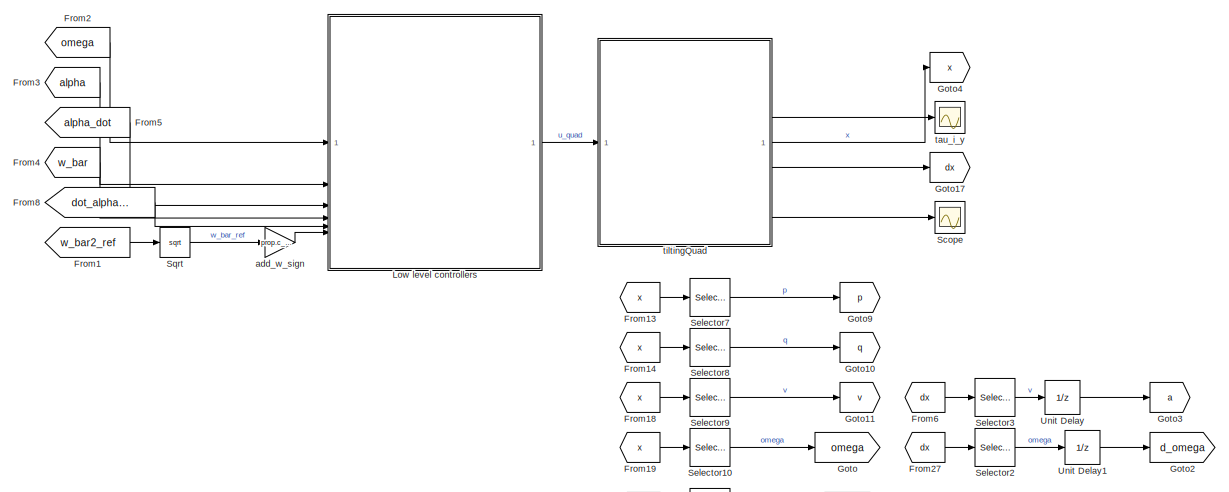
[diagram: root canvas - part 1/4, top right region]
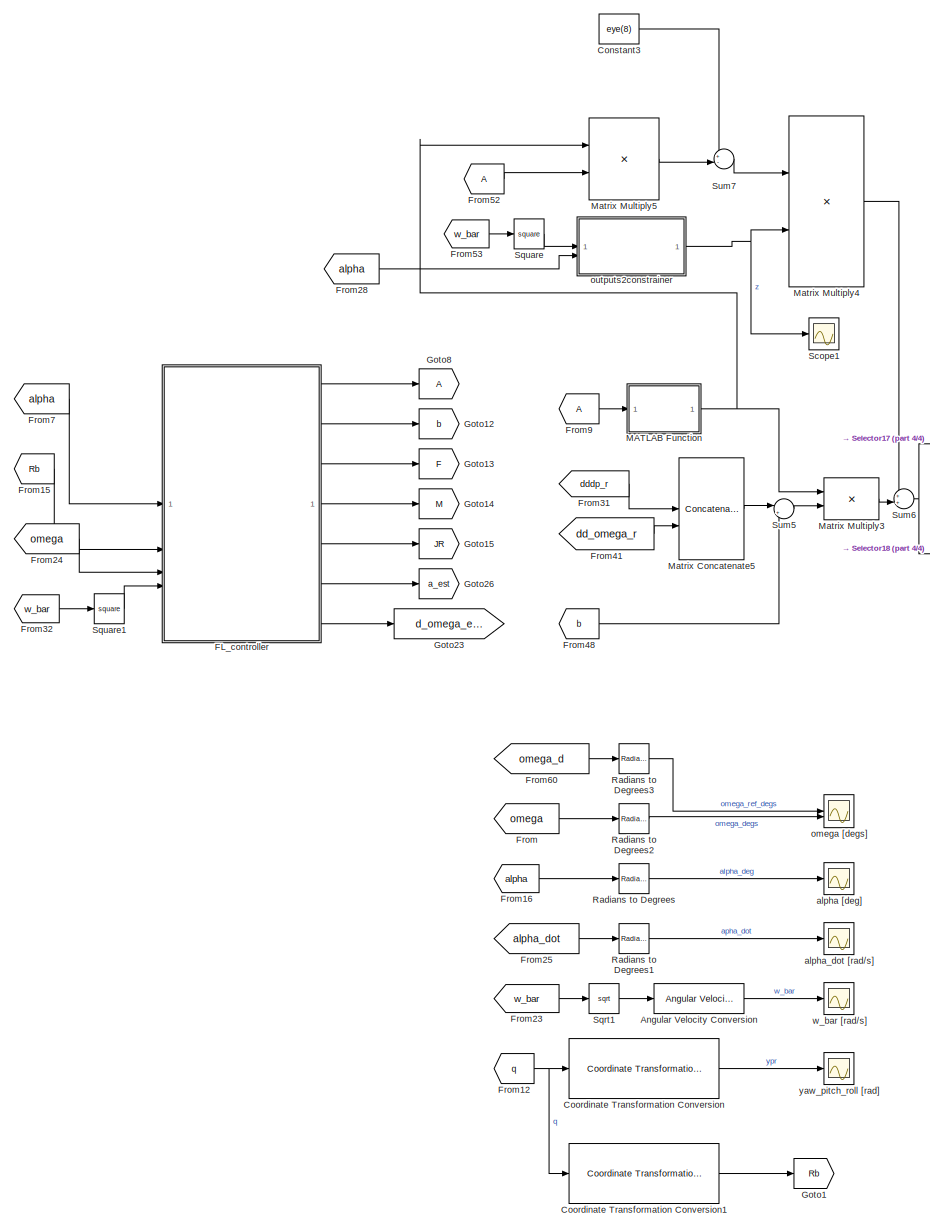
[diagram: root canvas - part 2/4, center side, full height]
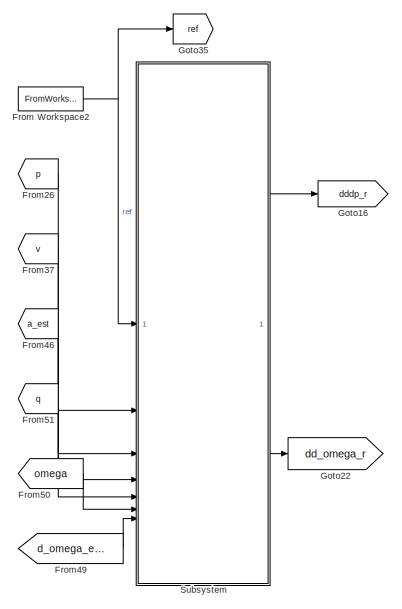
[diagram: root canvas - part 3/4, middle left region]
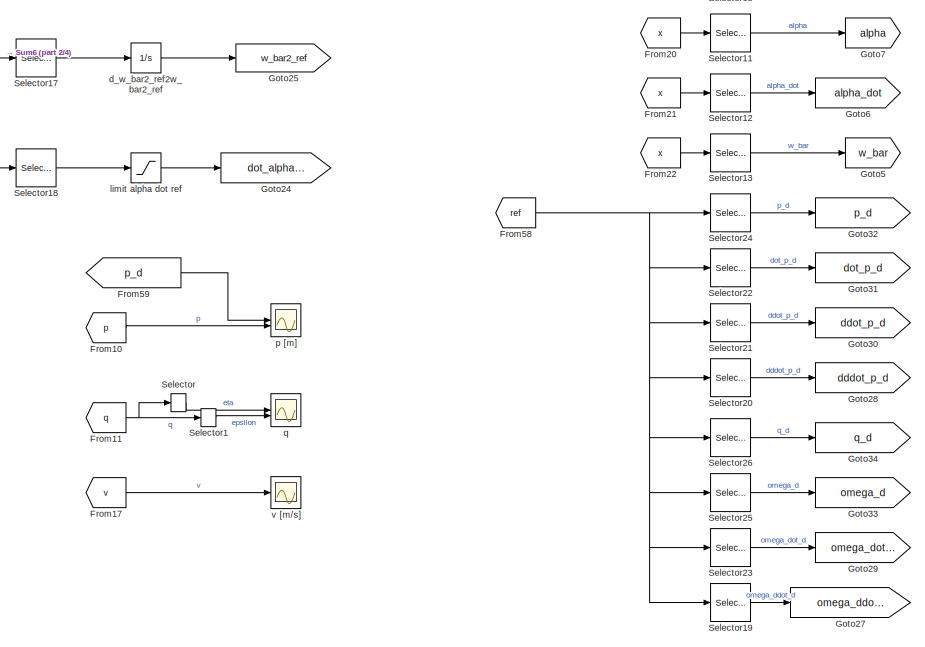
[diagram: root canvas - part 4/4, middle right region]
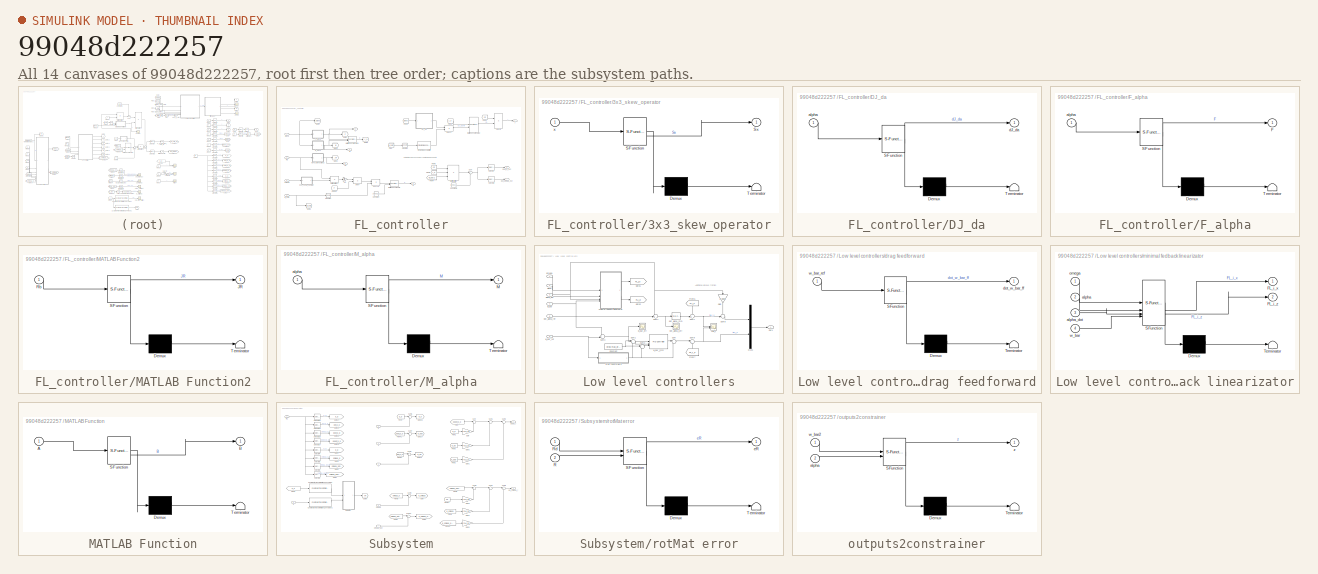
[diagram: thumbnail index - all 14 canvases of the model, root first then tree order]
MODEL slx_99048d222257
KIND model
CONFIG AbsTol = auto
CONFIG EnableMultiTasking = off
CONFIG FixedStep = T_s
CONFIG InitFcn = run initFLhighFidelityTiltingQuadrotor
CONFIG MaxStep = auto
CONFIG MinStep = auto
CONFIG RelTol = 1e-3
CONFIG SampleTimeConstraint = Unconstrained
CONFIG SolverName = ode4
CONFIG StartTime = 0.0
CONFIG StopTime = 15
BLOCK [Reference] Angular Velocity Conversion  REF=aerolibconvert2/Angular Velocity
Conversion
  Commented = through
  SourceBlock = aerolibconvert2/Angular Velocity\nConversion
  SourceType = Angular Velocity Conversion
BLOCK [Constant] Constant3
  Value = eye(8)
BLOCK [Reference] Coordinate Transformation Conversion  REF=robotcorelib/Coordinate Transformation Conversion
  LibrarySourceBlock = robotutilslib/Coordinate Transformation Conversion
  SourceBlock = robotcorelib/Coordinate Transformation Conversion
  SourceType = robotics.slcore.internal.block.CoordinateTransformationConversion
BLOCK [Reference] Coordinate Transformation Conversion1  REF=robotcorelib/Coordinate Transformation Conversion
  LibrarySourceBlock = robotutilslib/Coordinate Transformation Conversion
  SourceBlock = robotcorelib/Coordinate Transformation Conversion
  SourceType = robotics.slcore.internal.block.CoordinateTransformationConversion
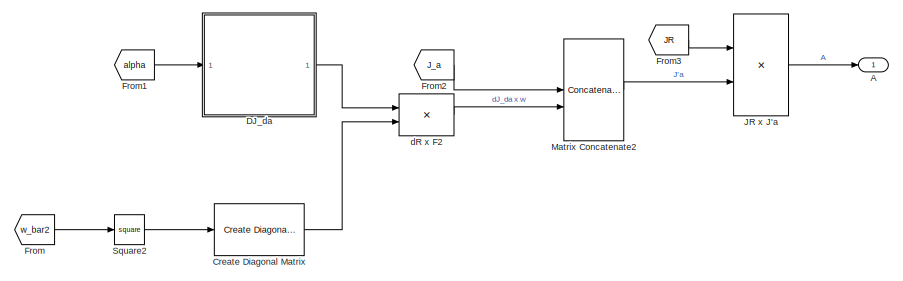
[diagram: FL_controller - part 1/2, top right region]
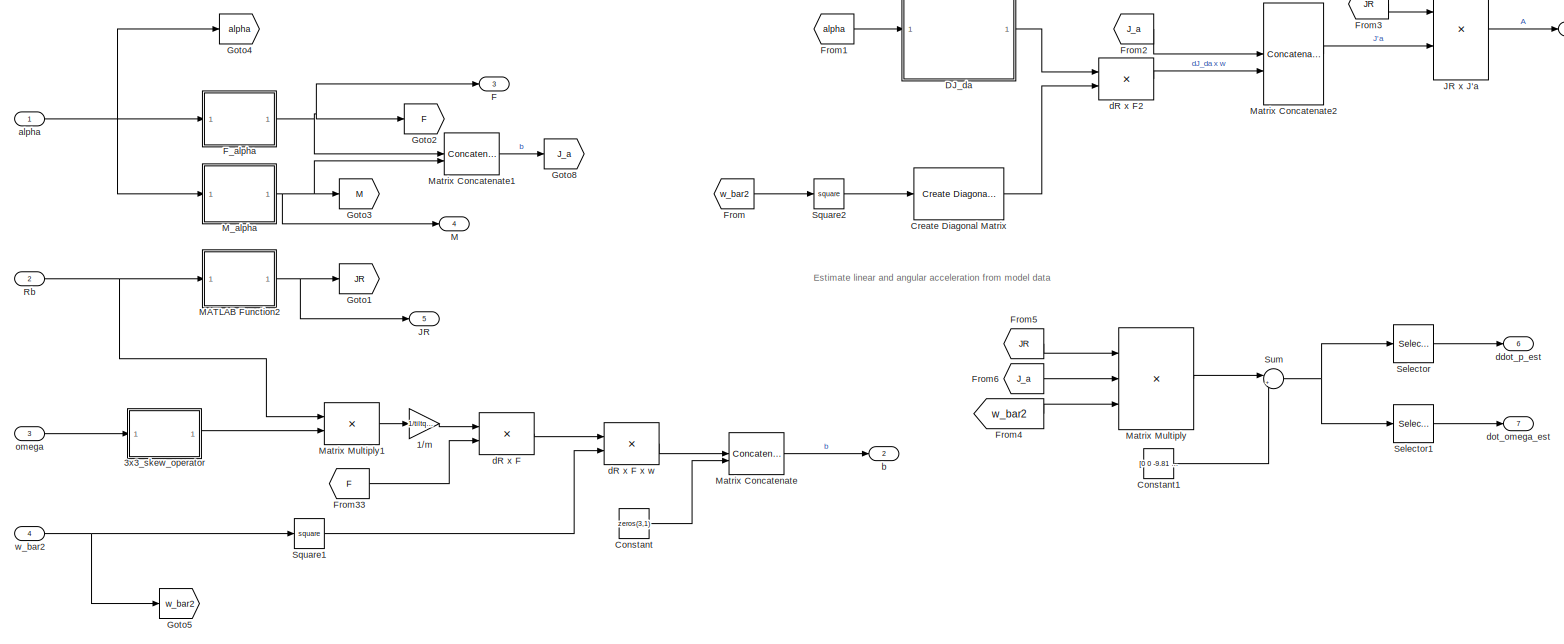
[diagram: FL_controller - part 2/2, most of the canvas]
BLOCK [SubSystem] FL_controller
BLOCK [Gain] FL_controller/1//m
  Gain = 1/tiltq.m_b
BLOCK [SubSystem] FL_controller/3x3_skew_operator
  ErrorFcn = Stateflow.Translate.translate
  LibrarySourceBlock = simulink/User-Defined\nFunctions/MATLAB Function
  PermitHierarchicalResolution = ExplicitOnly
  SFBlockType = MATLAB Function
  TreatAsAtomicUnit = on
BLOCK [Demux] FL_controller/3x3_skew_operator/ Demux 
  Outputs = 1
BLOCK [S-Function] FL_controller/3x3_skew_operator/ SFunction 
  EnableBusSupport = on
  FunctionName = sf_sfun
  PortCounts = [1 2]
  SFcnIsStateOwnerBlock = off
  SFunctionDeploymentMode = off
  Tag = Stateflow S-Function 8
BLOCK [Terminator] FL_controller/3x3_skew_operator/ Terminator 
BLOCK [Outport] FL_controller/3x3_skew_operator/Sx
BLOCK [Inport] FL_controller/3x3_skew_operator/x
BLOCK [Outport] FL_controller/A
  PortDimensions = [6 8]
BLOCK [Constant] FL_controller/Constant
  Value = zeros(3,1)
BLOCK [Constant] FL_controller/Constant1
  Value = [0 0 -9.81 0 0 0]
BLOCK [Reference] FL_controller/Create Diagonal Matrix  REF=matrix_library/Create Diagonal
Matrix
  LibrarySourceBlock = simulink/Matrix\nOperations/Create Diagonal\nMatrix
  SourceBlock = matrix_library/Create Diagonal\nMatrix
  SourceType = Create Diagonal Matrix
BLOCK [SubSystem] FL_controller/DJ_da
  ErrorFcn = Stateflow.Translate.translate
  LibrarySourceBlock = simulink/User-Defined\nFunctions/MATLAB Function
  PermitHierarchicalResolution = ExplicitOnly
  SFBlockType = MATLAB Function
  TreatAsAtomicUnit = on
BLOCK [Demux] FL_controller/DJ_da/ Demux 
  Outputs = 1
BLOCK [S-Function] FL_controller/DJ_da/ SFunction 
  EnableBusSupport = on
  FunctionName = sf_sfun
  Parameters = beta,c_d,c_t,c_tau,p_mot
  PortCounts = [1 2]
  SFcnIsStateOwnerBlock = off
  SFunctionDeploymentMode = off
  Tag = Stateflow S-Function 9
BLOCK [Terminator] FL_controller/DJ_da/ Terminator 
BLOCK [Inport] FL_controller/DJ_da/alpha
BLOCK [Outport] FL_controller/DJ_da/dJ_da
BLOCK [Outport] FL_controller/F
  Port = 3
BLOCK [SubSystem] FL_controller/F_alpha
  ErrorFcn = Stateflow.Translate.translate
  LibrarySourceBlock = simulink/User-Defined\nFunctions/MATLAB Function
  PermitHierarchicalResolution = ExplicitOnly
  SFBlockType = MATLAB Function
  TreatAsAtomicUnit = on
BLOCK [Demux] FL_controller/F_alpha/ Demux 
  Outputs = 1
BLOCK [S-Function] FL_controller/F_alpha/ SFunction 
  EnableBusSupport = on
  FunctionName = sf_sfun
  Parameters = beta,c_t
  PortCounts = [1 2]
  SFcnIsStateOwnerBlock = off
  SFunctionDeploymentMode = off
  Tag = Stateflow S-Function 5
BLOCK [Terminator] FL_controller/F_alpha/ Terminator 
BLOCK [Outport] FL_controller/F_alpha/F
BLOCK [Inport] FL_controller/F_alpha/alpha
BLOCK [From] FL_controller/From
  GotoTag = w_bar2
BLOCK [From] FL_controller/From1
  GotoTag = alpha
BLOCK [From] FL_controller/From2
  GotoTag = J_a
BLOCK [From] FL_controller/From3
  GotoTag = JR
BLOCK [From] FL_controller/From33
  GotoTag = F
BLOCK [From] FL_controller/From4
  GotoTag = w_bar2
BLOCK [From] FL_controller/From5
  GotoTag = JR
BLOCK [From] FL_controller/From6
  GotoTag = J_a
BLOCK [Goto] FL_controller/Goto1
  GotoTag = JR
BLOCK [Goto] FL_controller/Goto2
  GotoTag = F
BLOCK [Goto] FL_controller/Goto3
  Commented = on
  GotoTag = M
BLOCK [Goto] FL_controller/Goto4
  GotoTag = alpha
BLOCK [Goto] FL_controller/Goto5
  GotoTag = w_bar2
BLOCK [Goto] FL_controller/Goto8
  GotoTag = J_a
BLOCK [Outport] FL_controller/JR
  Port = 5
BLOCK [Product] FL_controller/JR x J'a
  Multiplication = Matrix(*)
BLOCK [Outport] FL_controller/M
  Port = 4
BLOCK [SubSystem] FL_controller/MATLAB Function2
  ErrorFcn = Stateflow.Translate.translate
  LibrarySourceBlock = simulink/User-Defined\nFunctions/MATLAB Function
  PermitHierarchicalResolution = ExplicitOnly
  SFBlockType = MATLAB Function
  TreatAsAtomicUnit = on
BLOCK [Demux] FL_controller/MATLAB Function2/ Demux 
  Outputs = 1
BLOCK [S-Function] FL_controller/MATLAB Function2/ SFunction 
  EnableBusSupport = on
  FunctionName = sf_sfun
  Parameters = Ib,m
  PortCounts = [1 2]
  SFcnIsStateOwnerBlock = off
  SFunctionDeploymentMode = off
  Tag = Stateflow S-Function 7
BLOCK [Terminator] FL_controller/MATLAB Function2/ Terminator 
BLOCK [Outport] FL_controller/MATLAB Function2/JR
BLOCK [Inport] FL_controller/MATLAB Function2/Rb
BLOCK [SubSystem] FL_controller/M_alpha
  ErrorFcn = Stateflow.Translate.translate
  LibrarySourceBlock = simulink/User-Defined\nFunctions/MATLAB Function
  PermitHierarchicalResolution = ExplicitOnly
  SFBlockType = MATLAB Function
  TreatAsAtomicUnit = on
BLOCK [Demux] FL_controller/M_alpha/ Demux 
  Outputs = 1
BLOCK [S-Function] FL_controller/M_alpha/ SFunction 
  EnableBusSupport = on
  FunctionName = sf_sfun
  Parameters = beta,c_direction,c_t,c_tau,p_mot,theta
  PortCounts = [1 2]
  SFcnIsStateOwnerBlock = off
  SFunctionDeploymentMode = off
  Tag = Stateflow S-Function 6
BLOCK [Terminator] FL_controller/M_alpha/ Terminator 
BLOCK [Outport] FL_controller/M_alpha/M
BLOCK [Inport] FL_controller/M_alpha/alpha
BLOCK [Concatenate] FL_controller/Matrix Concatenate
  Mode = Multidimensional array
BLOCK [Concatenate] FL_controller/Matrix Concatenate1
  Mode = Multidimensional array
BLOCK [Concatenate] FL_controller/Matrix Concatenate2
  ConcatenateDimension = 2
  Mode = Multidimensional array
BLOCK [Product] FL_controller/Matrix Multiply
  Inputs = 3
  Multiplication = Matrix(*)
BLOCK [Product] FL_controller/Matrix Multiply1
  Multiplication = Matrix(*)
BLOCK [Inport] FL_controller/Rb
  Port = 2
BLOCK [Selector] FL_controller/Selector
  IndexOptions = Index vector (dialog)
  Indices = 1:3
  InputPortWidth = 6
  OutputSizes = 1
BLOCK [Selector] FL_controller/Selector1
  IndexOptions = Index vector (dialog)
  Indices = 4:6
  InputPortWidth = 6
  OutputSizes = 1
BLOCK [Math] FL_controller/Square1
  Commented = through
  Operator = square
BLOCK [Math] FL_controller/Square2
  Commented = through
  Operator = square
BLOCK [Sum] FL_controller/Sum
  Inputs = |++
BLOCK [Inport] FL_controller/alpha
BLOCK [Outport] FL_controller/b
  Port = 2
  PortDimensions = 6
BLOCK [Product] FL_controller/dR x F
  Multiplication = Matrix(*)
BLOCK [Product] FL_controller/dR x F x w
  Multiplication = Matrix(*)
BLOCK [Product] FL_controller/dR x F2
  Multiplication = Matrix(*)
BLOCK [Outport] FL_controller/ddot_p_est
  Port = 6
BLOCK [Outport] FL_controller/dot_omega_est
  Port = 7
BLOCK [Inport] FL_controller/omega
  Port = 3
BLOCK [Inport] FL_controller/w_bar2
  Port = 4
BLOCK [From] From
  GotoTag = omega
BLOCK [FromWorkspace] From Workspace2
  SampleTime = Ts_st
  VariableName = ref_FL
BLOCK [From] From1
  GotoTag = w_bar2_ref
BLOCK [From] From10
  GotoTag = p
BLOCK [From] From11
  GotoTag = q
BLOCK [From] From12
  GotoTag = q
BLOCK [From] From13
  GotoTag = x
BLOCK [From] From14
  GotoTag = x
BLOCK [From] From15
  GotoTag = Rb
BLOCK [From] From16
  GotoTag = alpha
BLOCK [From] From17
  GotoTag = v
BLOCK [From] From18
  GotoTag = x
BLOCK [From] From19
  GotoTag = x
BLOCK [From] From2
  GotoTag = omega
BLOCK [From] From20
  GotoTag = x
BLOCK [From] From21
  GotoTag = x
BLOCK [From] From22
  GotoTag = x
BLOCK [From] From23
  GotoTag = w_bar
BLOCK [From] From24
  GotoTag = omega
BLOCK [From] From25
  GotoTag = alpha_dot
BLOCK [From] From26
  GotoTag = p
BLOCK [From] From27
  GotoTag = dx
BLOCK [From] From28
  GotoTag = alpha
BLOCK [From] From3
  GotoTag = alpha
BLOCK [From] From31
  GotoTag = dddp_r
BLOCK [From] From32
  GotoTag = w_bar
BLOCK [From] From37
  GotoTag = v
BLOCK [From] From4
  GotoTag = w_bar
BLOCK [From] From41
  GotoTag = dd_omega_r
BLOCK [From] From46
  GotoTag = a_est
BLOCK [From] From48
  GotoTag = b
BLOCK [From] From49
  GotoTag = d_omega_est
BLOCK [From] From5
  GotoTag = alpha_dot
BLOCK [From] From50
  GotoTag = omega
BLOCK [From] From51
  GotoTag = q
BLOCK [From] From52
BLOCK [From] From53
  GotoTag = w_bar
BLOCK [From] From58
  GotoTag = ref
BLOCK [From] From59
  GotoTag = p_d
BLOCK [From] From6
  GotoTag = dx
BLOCK [From] From60
  GotoTag = omega_d
BLOCK [From] From7
  GotoTag = alpha
BLOCK [From] From8
  GotoTag = dot_alpha_ref
BLOCK [From] From9
BLOCK [Goto] Goto
  GotoTag = omega
BLOCK [Goto] Goto1
  GotoTag = Rb
BLOCK [Goto] Goto10
  GotoTag = q
BLOCK [Goto] Goto11
  GotoTag = v
BLOCK [Goto] Goto12
  GotoTag = b
BLOCK [Goto] Goto13
  Commented = on
  GotoTag = F
BLOCK [Goto] Goto14
  Commented = on
  GotoTag = M
BLOCK [Goto] Goto15
  Commented = on
  GotoTag = JR
BLOCK [Goto] Goto16
  GotoTag = dddp_r
BLOCK [Goto] Goto17
  GotoTag = dx
BLOCK [Goto] Goto2
  GotoTag = d_omega
BLOCK [Goto] Goto22
  GotoTag = dd_omega_r
BLOCK [Goto] Goto23
  GotoTag = d_omega_est
BLOCK [Goto] Goto24
  GotoTag = dot_alpha_ref
BLOCK [Goto] Goto25
  GotoTag = w_bar2_ref
BLOCK [Goto] Goto26
  GotoTag = a_est
BLOCK [Goto] Goto27
  Commented = on
  GotoTag = omega_ddot_d
BLOCK [Goto] Goto28
  Commented = on
  GotoTag = dddot_p_d
BLOCK [Goto] Goto29
  Commented = on
  GotoTag = omega_dot_d
BLOCK [Goto] Goto3
  GotoTag = a
BLOCK [Goto] Goto30
  Commented = on
  GotoTag = ddot_p_d
BLOCK [Goto] Goto31
  Commented = on
  GotoTag = dot_p_d
BLOCK [Goto] Goto32
  GotoTag = p_d
BLOCK [Goto] Goto33
  GotoTag = omega_d
BLOCK [Goto] Goto34
  Commented = on
  GotoTag = q_d
BLOCK [Goto] Goto35
  GotoTag = ref
BLOCK [Goto] Goto4
  GotoTag = x
BLOCK [Goto] Goto5
  GotoTag = w_bar
BLOCK [Goto] Goto6
  GotoTag = alpha_dot
BLOCK [Goto] Goto7
  GotoTag = alpha
BLOCK [Goto] Goto8
BLOCK [Goto] Goto9
  GotoTag = p
BLOCK [SubSystem] Low level controllers
BLOCK [Constant] Low level controllers/Constant
  Value = prop.max_drag
BLOCK [From] Low level controllers/From6
  GotoTag = FL_i_x
  NameLocation = right
BLOCK [From] Low level controllers/From7
  GotoTag = FL_i_z
  NameLocation = left
BLOCK [Gain] Low level controllers/Gain
  Gain = 0.0001
  NameLocation = left
BLOCK [Goto] Low level controllers/Goto1
  GotoTag = FL_i_x
BLOCK [Goto] Low level controllers/Goto2
  GotoTag = FL_i_z
BLOCK [Mux] Low level controllers/Mux1
  DisplayOption = bar
  Inputs = 2
BLOCK [Outport] Low level controllers/Out1
BLOCK [Sum] Low level controllers/Sum
  Inputs = |++
BLOCK [Sum] Low level controllers/Sum1
  Inputs = |+-
BLOCK [Sum] Low level controllers/Sum2
  Inputs = |--
BLOCK [Sum] Low level controllers/Sum3
  Inputs = -+|
BLOCK [Sum] Low level controllers/Sum4
  Inputs = -+|
BLOCK [Sum] Low level controllers/Sum7
  Inputs = -+|
BLOCK [Sum] Low level controllers/Sum8
  Inputs = -+|
BLOCK [Sum] Low level controllers/Sum9
  Inputs = |+-
BLOCK [Inport] Low level controllers/alpha
  Port = 2
BLOCK [Inport] Low level controllers/alpha_dot
  Port = 3
BLOCK [Reference] Low level controllers/dot_alpha_i_PID  REF=slpidlib/PID Controller
  LibrarySourceBlock = simulink/Continuous/PID Controller
  SourceBlock = slpidlib/PID Controller
  SourceType = PID 1dof
BLOCK [Scope] Low level controllers/dot_alpha_i_err
  Floating = off
  NumInputPorts = 1
  ScopeSpecificationString = Simulink.scopes.TimeScopeBlockCfg('CurrentConfiguration', extmgr.ConfigurationSet(extmgr.Configuration('Core','General UI',true),extmgr.Configuration('Core','Source UI',true),extmgr.Configuration('Sources','WiredSimulink',true,'DataLoggingVariableName','ScopeData1','SampleTime','Ts'),extmgr.Configuration('Visuals','Time Domain',true,'SerializedDisplays',{struct('MinYLimReal','-11.38877','MaxYLimRe...<+1468ch>
BLOCK [Inport] Low level controllers/dot_alpha_ref
  Port = 5
BLOCK [SubSystem] Low level controllers/drag feedforward
  Commented = on
  ErrorFcn = Stateflow.Translate.translate
  LibrarySourceBlock = simulink/User-Defined\nFunctions/MATLAB Function
  PermitHierarchicalResolution = ExplicitOnly
  SFBlockType = MATLAB Function
  TreatAsAtomicUnit = on
BLOCK [Demux] Low level controllers/drag feedforward/ Demux 
  Outputs = 1
BLOCK [S-Function] Low level controllers/drag feedforward/ SFunction 
  EnableBusSupport = on
  FunctionName = sf_sfun
  Parameters = k_m
  PortCounts = [1 2]
  SFcnIsStateOwnerBlock = off
  SFunctionDeploymentMode = off
  Tag = Stateflow S-Function 2
BLOCK [Terminator] Low level controllers/drag feedforward/ Terminator 
BLOCK [Outport] Low level controllers/drag feedforward/dot_w_bar_ff
BLOCK [Inport] Low level controllers/drag feedforward/w_bar_ref
BLOCK [SubSystem] Low level controllers/minimal fedback linearizator
  Commented = on
  ErrorFcn = Stateflow.Translate.translate
  LibrarySourceBlock = simulink/User-Defined\nFunctions/MATLAB Function
  PermitHierarchicalResolution = ExplicitOnly
  SFBlockType = MATLAB Function
  TreatAsAtomicUnit = on
BLOCK [Demux] Low level controllers/minimal fedback linearizator/ Demux 
  Outputs = 1
BLOCK [S-Function] Low level controllers/minimal fedback linearizator/ SFunction 
  EnableBusSupport = on
  FunctionName = sf_sfun
  Parameters = I_i,N,beta
  PortCounts = [4 3]
  SFcnIsStateOwnerBlock = off
  SFunctionDeploymentMode = off
  Tag = Stateflow S-Function 4
BLOCK [Terminator] Low level controllers/minimal fedback linearizator/ Terminator 
BLOCK [Outport] Low level controllers/minimal fedback linearizator/FL_i_x
BLOCK [Outport] Low level controllers/minimal fedback linearizator/FL_i_z
  Port = 2
BLOCK [Inport] Low level controllers/minimal fedback linearizator/alpha
  Port = 2
BLOCK [Inport] Low level controllers/minimal fedback linearizator/alpha_dot
  Port = 3
BLOCK [Inport] Low level controllers/minimal fedback linearizator/omega
BLOCK [Inport] Low level controllers/minimal fedback linearizator/w_bar
  Port = 4
BLOCK [Inport] Low level controllers/omega
BLOCK [Scope] Low level controllers/tau_i
  Floating = off
  NumInputPorts = 2
  ScopeSpecificationString = Simulink.scopes.TimeScopeBlockCfg('CurrentConfiguration', extmgr.ConfigurationSet(extmgr.Configuration('Core','General UI',true),extmgr.Configuration('Core','Source UI',true),extmgr.Configuration('Sources','WiredSimulink',true,'DataLoggingVariableName','ScopeData2','SampleTime','0.001'),extmgr.Configuration('Visuals','Time Domain',true,'SerializedDisplays',{struct('MinYLimReal','-0.0825','MaxYLimR...<+2241ch>
BLOCK [Inport] Low level controllers/w_bar
  Port = 4
BLOCK [Scope] Low level controllers/w_bar_err
  Floating = off
  NumInputPorts = 1
  ScopeSpecificationString = Simulink.scopes.TimeScopeBlockCfg('CurrentConfiguration', extmgr.ConfigurationSet(extmgr.Configuration('Core','General UI',true),extmgr.Configuration('Core','Source UI',true),extmgr.Configuration('Sources','WiredSimulink',true,'DataLoggingVariableName','ScopeData3','SampleTime','Ts'),extmgr.Configuration('Visuals','Time Domain',true,'SerializedDisplays',{struct('MinYLimReal','-14.62489','MaxYLimRe...<+1560ch>
BLOCK [Reference] Low level controllers/w_bar_i_PID  REF=slpidlib/PID Controller
  LibrarySourceBlock = simulink/Continuous/PID Controller
  SourceBlock = slpidlib/PID Controller
  SourceType = PID 1dof
BLOCK [Inport] Low level controllers/w_bar_ref
  Port = 6
BLOCK [SubSystem] MATLAB Function
  ErrorFcn = Stateflow.Translate.translate
  LibrarySourceBlock = simulink/User-Defined\nFunctions/MATLAB Function
  PermitHierarchicalResolution = ExplicitOnly
  SFBlockType = MATLAB Function
  TreatAsAtomicUnit = on
BLOCK [Demux] MATLAB Function/ Demux 
  Outputs = 1
BLOCK [S-Function] MATLAB Function/ SFunction 
  EnableBusSupport = on
  FunctionName = sf_sfun
  PortCounts = [1 2]
  SFcnIsStateOwnerBlock = off
  SFunctionDeploymentMode = off
  Tag = Stateflow S-Function 3
BLOCK [Terminator] MATLAB Function/ Terminator 
BLOCK [Inport] MATLAB Function/A
BLOCK [Outport] MATLAB Function/B
BLOCK [Concatenate] Matrix Concatenate5
  ConcatenateDimension = 2
BLOCK [Product] Matrix Multiply3
  Multiplication = Matrix(*)
BLOCK [Product] Matrix Multiply4
  Multiplication = Matrix(*)
BLOCK [Product] Matrix Multiply5
  Multiplication = Matrix(*)
BLOCK [Reference] Radians to Degrees  REF=simulink_extras/Transformations/Radians
to Degrees
  SourceBlock = simulink_extras/Transformations/Radians\nto Degrees
  SourceType = RadiansToDegrees
BLOCK [Reference] Radians to Degrees1  REF=simulink_extras/Transformations/Radians
to Degrees
  Commented = through
  SourceBlock = simulink_extras/Transformations/Radians\nto Degrees
  SourceType = RadiansToDegrees
BLOCK [Reference] Radians to Degrees2  REF=simulink_extras/Transformations/Radians
to Degrees
  SourceBlock = simulink_extras/Transformations/Radians\nto Degrees
  SourceType = RadiansToDegrees
BLOCK [Reference] Radians to Degrees3  REF=simulink_extras/Transformations/Radians
to Degrees
  SourceBlock = simulink_extras/Transformations/Radians\nto Degrees
  SourceType = RadiansToDegrees
BLOCK [Scope] Scope
  Floating = off
  NumInputPorts = 1
  ScopeSpecificationString = Simulink.scopes.TimeScopeBlockCfg('CurrentConfiguration', extmgr.ConfigurationSet(extmgr.Configuration('Core','General UI',true),extmgr.Configuration('Core','Source UI',true),extmgr.Configuration('Sources','WiredSimulink',true,'DataLoggingVariableName','ScopeData1'),extmgr.Configuration('Visuals','Time Domain',true,'SerializedDisplays',{struct('MinYLimReal','-0.0000000000019','MaxYLimReal','0.0000...<+1557ch>
BLOCK [Scope] Scope1
  Floating = off
  NumInputPorts = 1
  ScopeSpecificationString = Simulink.scopes.TimeScopeBlockCfg('CurrentConfiguration', extmgr.ConfigurationSet(extmgr.Configuration('Core','General UI',true),extmgr.Configuration('Core','Source UI',true),extmgr.Configuration('Sources','WiredSimulink',true,'DataLoggingVariableName','ScopeData1'),extmgr.Configuration('Visuals','Time Domain',true,'SerializedDisplays',{struct('MinYLimReal','-17262764219.11745','MaxYLimReal','1726...<+1736ch>
BLOCK [Selector] Selector
  IndexOptions = Index vector (dialog)
  Indices = 1
  InputPortWidth = 4
  OutputSizes = 1
BLOCK [Selector] Selector1
  IndexOptions = Index vector (dialog)
  Indices = 2:4
  InputPortWidth = 4
  OutputSizes = 1
BLOCK [Selector] Selector10
  IndexOptions = Index vector (dialog)
  Indices = 11:13
  InputPortWidth = 25
  OutputSizes = 1
BLOCK [Selector] Selector11
  IndexOptions = Index vector (dialog)
  Indices = 14:17
  InputPortWidth = 25
  OutputSizes = 1
BLOCK [Selector] Selector12
  IndexOptions = Index vector (dialog)
  Indices = 18:21
  InputPortWidth = 25
  OutputSizes = 1
BLOCK [Selector] Selector13
  IndexOptions = Index vector (dialog)
  Indices = 22:25
  InputPortWidth = 25
  OutputSizes = 1
BLOCK [Selector] Selector17
  IndexOptions = Index vector (dialog)
  Indices = 1:4
  InputPortWidth = 8
  OutputSizes = 1
BLOCK [Selector] Selector18
  IndexOptions = Index vector (dialog)
  Indices = 5:8
  InputPortWidth = 8
  OutputSizes = 1
BLOCK [Selector] Selector19
  Commented = on
  IndexOptions = Index vector (dialog)
  Indices = 23:25
  InputPortWidth = 25
  OutputSizes = 1
BLOCK [Selector] Selector2
  IndexOptions = Index vector (dialog)
  Indices = 11:13
  InputPortWidth = 25
  OutputSizes = 1
BLOCK [Selector] Selector20
  Commented = on
  IndexOptions = Index vector (dialog)
  Indices = 20:22
  InputPortWidth = 25
  OutputSizes = 1
BLOCK [Selector] Selector21
  Commented = on
  IndexOptions = Index vector (dialog)
  Indices = 14:16
  InputPortWidth = 25
  OutputSizes = 1
BLOCK [Selector] Selector22
  Commented = on
  IndexOptions = Index vector (dialog)
  Indices = 8:10
  InputPortWidth = 25
  OutputSizes = 1
BLOCK [Selector] Selector23
  Commented = on
  IndexOptions = Index vector (dialog)
  Indices = 17:19
  InputPortWidth = 25
  OutputSizes = 1
BLOCK [Selector] Selector24
  IndexOptions = Index vector (dialog)
  Indices = 1:3
  InputPortWidth = 25
  OutputSizes = 1
BLOCK [Selector] Selector25
  IndexOptions = Index vector (dialog)
  Indices = 11:13
  InputPortWidth = 25
  OutputSizes = 1
BLOCK [Selector] Selector26
  Commented = on
  IndexOptions = Index vector (dialog)
  Indices = 4:7
  InputPortWidth = 25
  OutputSizes = 1
BLOCK [Selector] Selector3
  IndexOptions = Index vector (dialog)
  Indices = 8:10
  InputPortWidth = 25
  OutputSizes = 1
BLOCK [Selector] Selector7
  IndexOptions = Index vector (dialog)
  Indices = 1:3
  InputPortWidth = 25
  OutputSizes = 1
BLOCK [Selector] Selector8
  IndexOptions = Index vector (dialog)
  Indices = 4:7
  InputPortWidth = 25
  OutputSizes = 1
BLOCK [Selector] Selector9
  IndexOptions = Index vector (dialog)
  Indices = 8:10
  InputPortWidth = 25
  OutputSizes = 1
BLOCK [Sqrt] Sqrt
BLOCK [Sqrt] Sqrt1
  Commented = through
BLOCK [Math] Square
  Operator = square
BLOCK [Math] Square1
  Operator = square
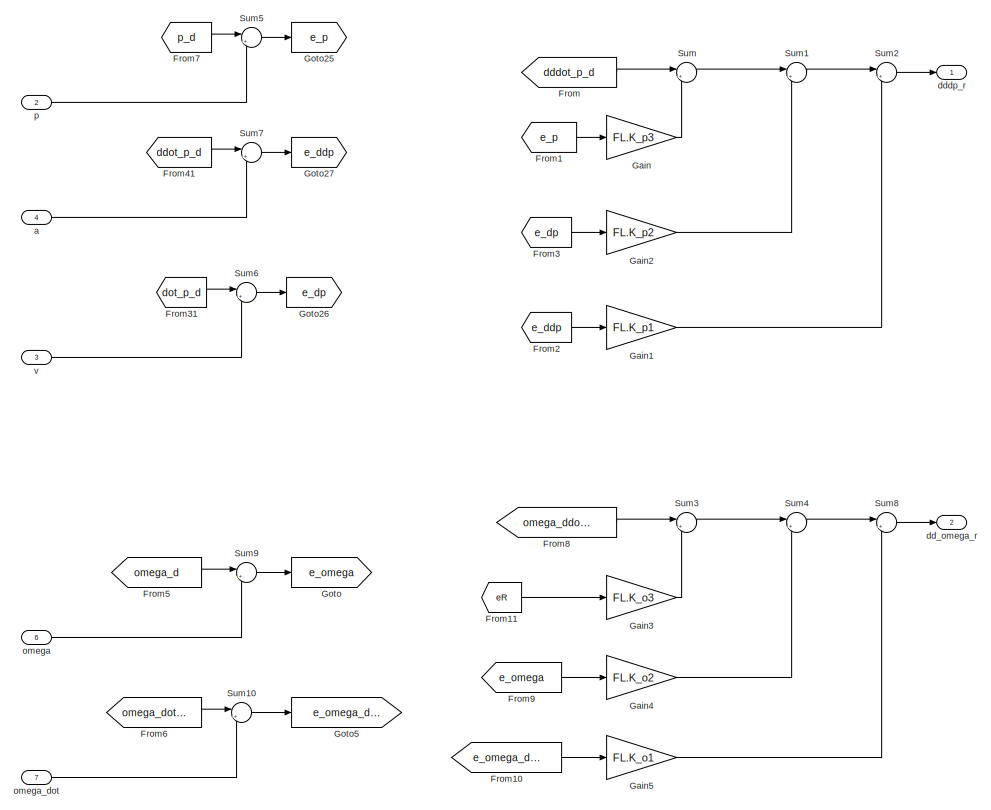
[diagram: Subsystem - part 1/2, right side, full height]
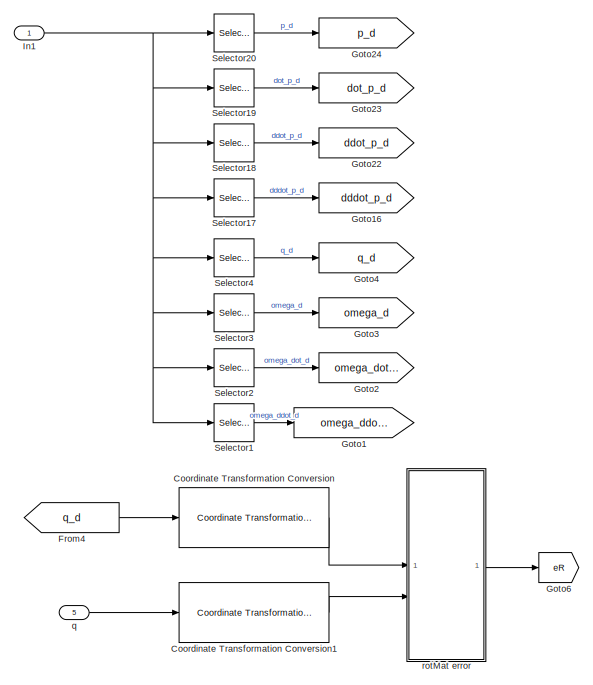
[diagram: Subsystem - part 2/2, left side, full height]
BLOCK [SubSystem] Subsystem
BLOCK [Reference] Subsystem/Coordinate Transformation Conversion  REF=robotcorelib/Coordinate Transformation Conversion
  LibrarySourceBlock = robotutilslib/Coordinate Transformation Conversion
  SourceBlock = robotcorelib/Coordinate Transformation Conversion
  SourceType = robotics.slcore.internal.block.CoordinateTransformationConversion
BLOCK [Reference] Subsystem/Coordinate Transformation Conversion1  REF=robotcorelib/Coordinate Transformation Conversion
  LibrarySourceBlock = robotutilslib/Coordinate Transformation Conversion
  SourceBlock = robotcorelib/Coordinate Transformation Conversion
  SourceType = robotics.slcore.internal.block.CoordinateTransformationConversion
BLOCK [From] Subsystem/From
  GotoTag = dddot_p_d
BLOCK [From] Subsystem/From1
  GotoTag = e_p
BLOCK [From] Subsystem/From10
  GotoTag = e_omega_dot
BLOCK [From] Subsystem/From11
  GotoTag = eR
BLOCK [From] Subsystem/From2
  GotoTag = e_ddp
BLOCK [From] Subsystem/From3
  GotoTag = e_dp
BLOCK [From] Subsystem/From31
  GotoTag = dot_p_d
BLOCK [From] Subsystem/From4
  GotoTag = q_d
BLOCK [From] Subsystem/From41
  GotoTag = ddot_p_d
BLOCK [From] Subsystem/From5
  GotoTag = omega_d
BLOCK [From] Subsystem/From6
  GotoTag = omega_dot_d
BLOCK [From] Subsystem/From7
  GotoTag = p_d
BLOCK [From] Subsystem/From8
  GotoTag = omega_ddot_d
BLOCK [From] Subsystem/From9
  GotoTag = e_omega
BLOCK [Gain] Subsystem/Gain
  Gain = FL.K_p3
  Multiplication = Matrix(K*u) (u vector)
BLOCK [Gain] Subsystem/Gain1
  Gain = FL.K_p1
  Multiplication = Matrix(K*u) (u vector)
BLOCK [Gain] Subsystem/Gain2
  Gain = FL.K_p2
  Multiplication = Matrix(K*u) (u vector)
BLOCK [Gain] Subsystem/Gain3
  Gain = FL.K_o3
  Multiplication = Matrix(K*u) (u vector)
BLOCK [Gain] Subsystem/Gain4
  Gain = FL.K_o2
  Multiplication = Matrix(K*u) (u vector)
BLOCK [Gain] Subsystem/Gain5
  Gain = FL.K_o1
  Multiplication = Matrix(K*u) (u vector)
BLOCK [Goto] Subsystem/Goto
  GotoTag = e_omega
BLOCK [Goto] Subsystem/Goto1
  GotoTag = omega_ddot_d
BLOCK [Goto] Subsystem/Goto16
  GotoTag = dddot_p_d
BLOCK [Goto] Subsystem/Goto2
  GotoTag = omega_dot_d
BLOCK [Goto] Subsystem/Goto22
  GotoTag = ddot_p_d
BLOCK [Goto] Subsystem/Goto23
  GotoTag = dot_p_d
BLOCK [Goto] Subsystem/Goto24
  GotoTag = p_d
BLOCK [Goto] Subsystem/Goto25
  GotoTag = e_p
BLOCK [Goto] Subsystem/Goto26
  GotoTag = e_dp
BLOCK [Goto] Subsystem/Goto27
  GotoTag = e_ddp
BLOCK [Goto] Subsystem/Goto3
  GotoTag = omega_d
BLOCK [Goto] Subsystem/Goto4
  GotoTag = q_d
BLOCK [Goto] Subsystem/Goto5
  GotoTag = e_omega_dot
BLOCK [Goto] Subsystem/Goto6
  GotoTag = eR
BLOCK [Inport] Subsystem/In1
BLOCK [Selector] Subsystem/Selector1
  IndexOptions = Index vector (dialog)
  Indices = 23:25
  InputPortWidth = 25
  OutputSizes = 1
BLOCK [Selector] Subsystem/Selector17
  IndexOptions = Index vector (dialog)
  Indices = 20:22
  InputPortWidth = 25
  OutputSizes = 1
BLOCK [Selector] Subsystem/Selector18
  IndexOptions = Index vector (dialog)
  Indices = 14:16
  InputPortWidth = 25
  OutputSizes = 1
BLOCK [Selector] Subsystem/Selector19
  IndexOptions = Index vector (dialog)
  Indices = 8:10
  InputPortWidth = 25
  OutputSizes = 1
BLOCK [Selector] Subsystem/Selector2
  IndexOptions = Index vector (dialog)
  Indices = 17:19
  InputPortWidth = 25
  OutputSizes = 1
BLOCK [Selector] Subsystem/Selector20
  IndexOptions = Index vector (dialog)
  Indices = 1:3
  InputPortWidth = 25
  OutputSizes = 1
BLOCK [Selector] Subsystem/Selector3
  IndexOptions = Index vector (dialog)
  Indices = 11:13
  InputPortWidth = 25
  OutputSizes = 1
BLOCK [Selector] Subsystem/Selector4
  IndexOptions = Index vector (dialog)
  Indices = 4:7
  InputPortWidth = 25
  OutputSizes = 1
BLOCK [Sum] Subsystem/Sum
  Inputs = |++
BLOCK [Sum] Subsystem/Sum1
  Inputs = |++
BLOCK [Sum] Subsystem/Sum10
  Inputs = |+-
BLOCK [Sum] Subsystem/Sum2
  Inputs = |++
BLOCK [Sum] Subsystem/Sum3
  Inputs = |++
BLOCK [Sum] Subsystem/Sum4
  Inputs = |++
BLOCK [Sum] Subsystem/Sum5
  Inputs = |+-
BLOCK [Sum] Subsystem/Sum6
  Inputs = |+-
BLOCK [Sum] Subsystem/Sum7
  Inputs = |+-
BLOCK [Sum] Subsystem/Sum8
  Inputs = |++
BLOCK [Sum] Subsystem/Sum9
  Inputs = |+-
BLOCK [Inport] Subsystem/a
  Port = 4
BLOCK [Outport] Subsystem/dd_omega_r
  Port = 2
BLOCK [Outport] Subsystem/dddp_r
BLOCK [Inport] Subsystem/omega
  Port = 6
BLOCK [Inport] Subsystem/omega_dot
  Port = 7
BLOCK [Inport] Subsystem/p
  Port = 2
BLOCK [Inport] Subsystem/q
  Port = 5
BLOCK [SubSystem] Subsystem/rotMat error
  ErrorFcn = Stateflow.Translate.translate
  LibrarySourceBlock = simulink/User-Defined\nFunctions/MATLAB Function
  PermitHierarchicalResolution = ExplicitOnly
  SFBlockType = MATLAB Function
  TreatAsAtomicUnit = on
BLOCK [Demux] Subsystem/rotMat error/ Demux 
  Outputs = 1
BLOCK [S-Function] Subsystem/rotMat error/ SFunction 
  EnableBusSupport = on
  FunctionName = sf_sfun
  PortCounts = [2 2]
  SFcnIsStateOwnerBlock = off
  SFunctionDeploymentMode = off
  Tag = Stateflow S-Function 10
BLOCK [Terminator] Subsystem/rotMat error/ Terminator 
BLOCK [Inport] Subsystem/rotMat error/R
  Port = 2
BLOCK [Inport] Subsystem/rotMat error/Rd
BLOCK [Outport] Subsystem/rotMat error/eR
BLOCK [Inport] Subsystem/v
  Port = 3
BLOCK [Sum] Sum5
  Inputs = |+-
BLOCK [Sum] Sum6
  Inputs = ++|
BLOCK [Sum] Sum7
  Inputs = +-|
BLOCK [UnitDelay] Unit Delay
  HasFrameUpgradeWarning = on
  SampleTime = -1
BLOCK [UnitDelay] Unit Delay1
  HasFrameUpgradeWarning = on
  SampleTime = -1
BLOCK [Gain] add_w_sign
  Gain = prop.c_direction
BLOCK [Scope] alpha [deg]
  Floating = off
  NumInputPorts = 1
  ScopeSpecificationString = Simulink.scopes.TimeScopeBlockCfg('CurrentConfiguration', extmgr.ConfigurationSet(extmgr.Configuration('Core','General UI',true),extmgr.Configuration('Core','Source UI',true),extmgr.Configuration('Sources','WiredSimulink',true,'DataLoggingVariableName','ScopeData1','SampleTime','0.001'),extmgr.Configuration('Visuals','Time Domain',true,'SerializedDisplays',{struct('MinYLimReal','-75.00000','MaxYLi...<+1547ch>
BLOCK [Scope] alpha_dot [rad//s]
  Floating = off
  NumInputPorts = 1
  ScopeSpecificationString = Simulink.scopes.TimeScopeBlockCfg('CurrentConfiguration', extmgr.ConfigurationSet(extmgr.Configuration('Core','General UI',true),extmgr.Configuration('Core','Source UI',true),extmgr.Configuration('Sources','WiredSimulink',true,'DataLoggingVariableName','ScopeData2','SampleTime','0.001'),extmgr.Configuration('Visuals','Time Domain',true,'SerializedDisplays',{struct('MinYLimReal','-7.47099','MaxYLim...<+1502ch>
BLOCK [Integrator] d_w_bar2_ref2w_bar2_ref
  InitialCondition = w_bar_0.^2
  LimitOutput = on
  LowerSaturationLimit = prop.w_min.^2
  UpperSaturationLimit = prop.w_max.^2
BLOCK [Saturate] limit alpha dot ref
  LowerLimit = -6
  UpperLimit = 6
BLOCK [Scope] omega [degs]
  Floating = off
  NumInputPorts = 2
  ScopeSpecificationString = Simulink.scopes.TimeScopeBlockCfg('CurrentConfiguration', extmgr.ConfigurationSet(extmgr.Configuration('Core','General UI',true),extmgr.Configuration('Core','Source UI',true),extmgr.Configuration('Sources','WiredSimulink',true,'DataLoggingVariableName','ScopeData3','SampleTime','0.001'),extmgr.Configuration('Visuals','Time Domain',true,'SerializedDisplays',{struct('MinYLimReal','-451.31601','MaxYL...<+2256ch>
BLOCK [SubSystem] outputs2constrainer
  ErrorFcn = Stateflow.Translate.translate
  LibrarySourceBlock = simulink/User-Defined\nFunctions/MATLAB Function
  PermitHierarchicalResolution = ExplicitOnly
  SFBlockType = MATLAB Function
  TreatAsAtomicUnit = on
BLOCK [Demux] outputs2constrainer/ Demux 
  Outputs = 1
BLOCK [S-Function] outputs2constrainer/ SFunction 
  EnableBusSupport = on
  FunctionName = sf_sfun
  Parameters = kh1,kh2,w_bar2_min,w_bar2_rest
  PortCounts = [2 2]
  SFcnIsStateOwnerBlock = off
  SFunctionDeploymentMode = off
  Tag = Stateflow S-Function 12
BLOCK [Terminator] outputs2constrainer/ Terminator 
BLOCK [Inport] outputs2constrainer/alpha
  Port = 2
BLOCK [Inport] outputs2constrainer/w_bar2
BLOCK [Outport] outputs2constrainer/z
BLOCK [Scope] p [m]
  Floating = off
  NumInputPorts = 2
  ScopeSpecificationString = Simulink.scopes.TimeScopeBlockCfg('CurrentConfiguration', extmgr.ConfigurationSet(extmgr.Configuration('Core','General UI',true),extmgr.Configuration('Core','Source UI',true),extmgr.Configuration('Sources','WiredSimulink',true,'DataLoggingVariableName','ScopeData4','SampleTime','0.001'),extmgr.Configuration('Visuals','Time Domain',true,'SerializedDisplays',{struct('MinYLimReal','-2.55035','MaxYLim...<+2188ch>
BLOCK [Scope] q
  Floating = off
  NumInputPorts = 2
  ScopeSpecificationString = Simulink.scopes.TimeScopeBlockCfg('CurrentConfiguration', extmgr.ConfigurationSet(extmgr.Configuration('Core','General UI',true),extmgr.Configuration('Core','Source UI',true),extmgr.Configuration('Sources','WiredSimulink',true,'DataLoggingVariableName','ScopeData5','SampleTime','0.001'),extmgr.Configuration('Visuals','Time Domain',true,'SerializedDisplays',{struct('MinYLimReal','-1.25','MaxYLimRea...<+2153ch>
BLOCK [Scope] tau_i_y
  Floating = off
  NumInputPorts = 1
  ScopeSpecificationString = Simulink.scopes.TimeScopeBlockCfg('CurrentConfiguration', extmgr.ConfigurationSet(extmgr.Configuration('Core','General UI',true),extmgr.Configuration('Core','Source UI',true),extmgr.Configuration('Sources','WiredSimulink',true,'DataLoggingVariableName','ScopeData5','SampleTime','0.001'),extmgr.Configuration('Visuals','Time Domain',true,'SerializedDisplays',{struct('MinYLimReal','-0.0491','MaxYLimR...<+1612ch>
BLOCK [SubSystem] tiltingQuad
  I_b = body.I
  I_i = tiltq.I_i
  ReferencedSubsystem = high_fidelity_tilting_quadrotor
  alpha0 = alpha_0
  bar_w0 = w_bar_0
  beta = tiltq.beta
  c_direction = prop.c_direction
  d_alpha_0 = alpha_dot_0
  k_m = prop.k_m
  k_t = prop.k_t
  m_b = tiltq.m_b
  max_alpha = tiltq.max_alpha
  max_bar_w = [prop.w_max prop.w_max -prop.w_min -prop.w_min]
  max_d_alpha = tiltq.max_alpha_dot
  min_alpha = tiltq.min_alpha
  min_bar_w = [prop.w_min prop.w_min -prop.w_max -prop.w_max]
  min_d_alpha = tiltq.min_alpha_dot
  omega0 = omega_0
  p0 = p_0
  p_mot = tiltq.p_mot
  q0 = q_0
  v0 = v_0
BLOCK [Scope] v [m//s]
  Floating = off
  NumInputPorts = 1
  ScopeSpecificationString = Simulink.scopes.TimeScopeBlockCfg('CurrentConfiguration', extmgr.ConfigurationSet(extmgr.Configuration('Core','General UI',true),extmgr.Configuration('Core','Source UI',true),extmgr.Configuration('Sources','WiredSimulink',true,'DataLoggingVariableName','ScopeData6','SampleTime','0.001'),extmgr.Configuration('Visuals','Time Domain',true,'SerializedDisplays',{struct('MinYLimReal','-2.47455','MaxYLim...<+1511ch>
BLOCK [Scope] w_bar [rad//s]
  Floating = off
  NumInputPorts = 1
  ScopeSpecificationString = Simulink.scopes.TimeScopeBlockCfg('CurrentConfiguration', extmgr.ConfigurationSet(extmgr.Configuration('Core','General UI',true),extmgr.Configuration('Core','Source UI',true),extmgr.Configuration('Sources','WiredSimulink',true,'SampleTime','0.001','DataLoggingVariableName','ScopeData7'),extmgr.Configuration('Visuals','Time Domain',true,'SerializedDisplays',{struct('MinYLimReal','-1307.36343','MaxY...<+1599ch>
BLOCK [Scope] yaw_pitch_roll [rad]
  Floating = off
  NumInputPorts = 1
  ScopeSpecificationString = Simulink.scopes.TimeScopeBlockCfg('CurrentConfiguration', extmgr.ConfigurationSet(extmgr.Configuration('Core','General UI',true),extmgr.Configuration('Core','Source UI',true),extmgr.Configuration('Sources','WiredSimulink',true,'DataLoggingVariableName','ScopeData8'),extmgr.Configuration('Visuals','Time Domain',true,'SerializedDisplays',{struct('MinYLimReal','-0.78038','MaxYLimReal','0.99538','YLab...<+1435ch>
ANNOTATION FL_controller: Estimate linear and angular acceleration from model data
ANNOTATION Low level controllers: Additional viscous friction
LINE Angular Velocity Conversion:1 -> w_bar [rad//s]:1
LINE Constant3:1 -> Sum7:1
LINE Coordinate Transformation Conversion1:1 -> Goto1:1
LINE Coordinate Transformation Conversion:1 -> yaw_pitch_roll [rad]:1
LINE FL_controller/1//m:1 -> FL_controller/dR x F:1
LINE FL_controller/3x3_skew_operator:1 -> FL_controller/Matrix Multiply1:2
LINE FL_controller/Constant1:1 -> FL_controller/Sum:2
LINE FL_controller/Constant:1 -> FL_controller/Matrix Concatenate:2
LINE FL_controller/Create Diagonal Matrix:1 -> FL_controller/dR x F2:2
LINE FL_controller/DJ_da:1 -> FL_controller/dR x F2:1
NET FL_controller/F_alpha:1 -> FL_controller/F:1, FL_controller/Goto2:1, FL_controller/Matrix Concatenate1:1
LINE FL_controller/From1:1 -> FL_controller/DJ_da:1
LINE FL_controller/From2:1 -> FL_controller/Matrix Concatenate2:1
LINE FL_controller/From33:1 -> FL_controller/dR x F:2
LINE FL_controller/From3:1 -> FL_controller/JR x J'a:1
LINE FL_controller/From4:1 -> FL_controller/Matrix Multiply:3
LINE FL_controller/From5:1 -> FL_controller/Matrix Multiply:1
LINE FL_controller/From6:1 -> FL_controller/Matrix Multiply:2
LINE FL_controller/From:1 -> FL_controller/Square2:1
LINE FL_controller/JR x J'a:1 -> FL_controller/A:1
NET FL_controller/MATLAB Function2:1 -> FL_controller/Goto1:1, FL_controller/JR:1
NET FL_controller/M_alpha:1 -> FL_controller/Goto3:1, FL_controller/M:1, FL_controller/Matrix Concatenate1:2
LINE FL_controller/Matrix Concatenate1:1 -> FL_controller/Goto8:1
LINE FL_controller/Matrix Concatenate2:1 -> FL_controller/JR x J'a:2
LINE FL_controller/Matrix Concatenate:1 -> FL_controller/b:1
LINE FL_controller/Matrix Multiply1:1 -> FL_controller/1//m:1
LINE FL_controller/Matrix Multiply:1 -> FL_controller/Sum:1
NET FL_controller/Rb:1 -> FL_controller/MATLAB Function2:1, FL_controller/Matrix Multiply1:1
LINE FL_controller/Selector1:1 -> FL_controller/dot_omega_est:1
LINE FL_controller/Selector:1 -> FL_controller/ddot_p_est:1
LINE FL_controller/Square1:1 -> FL_controller/dR x F x w:2
LINE FL_controller/Square2:1 -> FL_controller/Create Diagonal Matrix:1
NET FL_controller/Sum:1 -> FL_controller/Selector1:1, FL_controller/Selector:1
NET FL_controller/alpha:1 -> FL_controller/F_alpha:1, FL_controller/Goto4:1, FL_controller/M_alpha:1
LINE FL_controller/dR x F x w:1 -> FL_controller/Matrix Concatenate:1
LINE FL_controller/dR x F2:1 -> FL_controller/Matrix Concatenate2:2
LINE FL_controller/dR x F:1 -> FL_controller/dR x F x w:1
LINE FL_controller/omega:1 -> FL_controller/3x3_skew_operator:1
NET FL_controller/w_bar2:1 -> FL_controller/Goto5:1, FL_controller/Square1:1
LINE FL_controller:1 -> Goto8:1
LINE FL_controller:2 -> Goto12:1
LINE FL_controller:3 -> Goto13:1
LINE FL_controller:4 -> Goto14:1
LINE FL_controller:5 -> Goto15:1
LINE FL_controller:6 -> Goto26:1
LINE FL_controller:7 -> Goto23:1
NET From Workspace2:1 -> Goto35:1, Subsystem:1
LINE From10:1 -> p [m]:2
NET From11:1 -> Selector1:1, Selector:1
NET From12:1 -> Coordinate Transformation Conversion1:1, Coordinate Transformation Conversion:1
LINE From13:1 -> Selector7:1
LINE From14:1 -> Selector8:1
LINE From15:1 -> FL_controller:2
LINE From16:1 -> Radians to Degrees:1
LINE From17:1 -> v [m//s]:1
LINE From18:1 -> Selector9:1
LINE From19:1 -> Selector10:1
LINE From1:1 -> Sqrt:1
LINE From20:1 -> Selector11:1
LINE From21:1 -> Selector12:1
LINE From22:1 -> Selector13:1
LINE From23:1 -> Sqrt1:1
LINE From24:1 -> FL_controller:3
LINE From25:1 -> Radians to Degrees1:1
LINE From26:1 -> Subsystem:2
LINE From27:1 -> Selector2:1
LINE From28:1 -> outputs2constrainer:2
LINE From2:1 -> Low level controllers:1
LINE From31:1 -> Matrix Concatenate5:1
LINE From32:1 -> Square1:1
LINE From37:1 -> Subsystem:3
LINE From3:1 -> Low level controllers:2
LINE From41:1 -> Matrix Concatenate5:2
LINE From46:1 -> Subsystem:4
LINE From48:1 -> Sum5:2
LINE From49:1 -> Subsystem:7
LINE From4:1 -> Low level controllers:4
LINE From50:1 -> Subsystem:6
LINE From51:1 -> Subsystem:5
LINE From52:1 -> Matrix Multiply5:2
LINE From53:1 -> Square:1
NET From58:1 -> Selector19:1, Selector20:1, Selector21:1, Selector22:1, Selector23:1, Selector24:1, Selector25:1, Selector26:1
LINE From59:1 -> p [m]:1
LINE From5:1 -> Low level controllers:3
LINE From60:1 -> Radians to Degrees3:1
LINE From6:1 -> Selector3:1
LINE From7:1 -> FL_controller:1
LINE From8:1 -> Low level controllers:5
LINE From9:1 -> MATLAB Function:1
LINE From:1 -> Radians to Degrees2:1
NET Low level controllers/Constant:1 -> Low level controllers/Sum1:1, Low level controllers/Sum2:1
LINE Low level controllers/From6:1 -> Low level controllers/Sum7:1
LINE Low level controllers/From7:1 -> Low level controllers/Sum9:2
LINE Low level controllers/Gain:1 -> Low level controllers/Sum8:1
LINE Low level controllers/Mux1:1 -> Low level controllers/Out1:1
LINE Low level controllers/Sum1:1 -> Low level controllers/w_bar_i_PID:2
LINE Low level controllers/Sum2:1 -> Low level controllers/w_bar_i_PID:3
NET Low level controllers/Sum3:1 -> Low level controllers/w_bar_err:1, Low level controllers/w_bar_i_PID:1
NET Low level controllers/Sum4:1 -> Low level controllers/dot_alpha_i_PID:1, Low level controllers/dot_alpha_i_err:1
NET Low level controllers/Sum7:1 -> Low level controllers/Sum8:2, Low level controllers/tau_i:1
LINE Low level controllers/Sum8:1 -> Low level controllers/Mux1:1
NET Low level controllers/Sum9:1 -> Low level controllers/Mux1:2, Low level controllers/tau_i:2
LINE Low level controllers/Sum:1 -> Low level controllers/Sum9:1
LINE Low level controllers/alpha:1 -> Low level controllers/minimal fedback linearizator:2
NET Low level controllers/alpha_dot:1 -> Low level controllers/Gain:1, Low level controllers/Sum4:1, Low level controllers/minimal fedback linearizator:3
LINE Low level controllers/dot_alpha_i_PID:1 -> Low level controllers/Sum7:2
LINE Low level controllers/dot_alpha_ref:1 -> Low level controllers/Sum4:2
NET Low level controllers/drag feedforward:1 -> Low level controllers/Sum1:2, Low level controllers/Sum2:2, Low level controllers/Sum:2
LINE Low level controllers/minimal fedback linearizator:1 -> Low level controllers/Goto1:1
LINE Low level controllers/minimal fedback linearizator:2 -> Low level controllers/Goto2:1
LINE Low level controllers/omega:1 -> Low level controllers/minimal fedback linearizator:1
NET Low level controllers/w_bar:1 -> Low level controllers/Sum3:1, Low level controllers/minimal fedback linearizator:4
LINE Low level controllers/w_bar_i_PID:1 -> Low level controllers/Sum:1
NET Low level controllers/w_bar_ref:1 -> Low level controllers/Sum3:2, Low level controllers/drag feedforward:1
LINE Low level controllers:1 -> tiltingQuad:1
NET MATLAB Function:1 -> Matrix Multiply3:1, Matrix Multiply5:1
LINE Matrix Concatenate5:1 -> Sum5:1
LINE Matrix Multiply3:1 -> Sum6:2
LINE Matrix Multiply4:1 -> Sum6:1
LINE Matrix Multiply5:1 -> Sum7:2
LINE Radians to Degrees1:1 -> alpha_dot [rad//s]:1
LINE Radians to Degrees2:1 -> omega [degs]:2
LINE Radians to Degrees3:1 -> omega [degs]:1
LINE Radians to Degrees:1 -> alpha [deg]:1
LINE Selector10:1 -> Goto:1
LINE Selector11:1 -> Goto7:1
LINE Selector12:1 -> Goto6:1
LINE Selector13:1 -> Goto5:1
LINE Selector17:1 -> d_w_bar2_ref2w_bar2_ref:1
LINE Selector18:1 -> limit alpha dot ref:1
LINE Selector19:1 -> Goto27:1
LINE Selector1:1 -> q:2
LINE Selector20:1 -> Goto28:1
LINE Selector21:1 -> Goto30:1
LINE Selector22:1 -> Goto31:1
LINE Selector23:1 -> Goto29:1
LINE Selector24:1 -> Goto32:1
LINE Selector25:1 -> Goto33:1
LINE Selector26:1 -> Goto34:1
LINE Selector2:1 -> Unit Delay1:1
LINE Selector3:1 -> Unit Delay:1
LINE Selector7:1 -> Goto9:1
LINE Selector8:1 -> Goto10:1
LINE Selector9:1 -> Goto11:1
LINE Selector:1 -> q:1
LINE Sqrt1:1 -> Angular Velocity Conversion:1
LINE Sqrt:1 -> add_w_sign:1
LINE Square1:1 -> FL_controller:4
LINE Square:1 -> outputs2constrainer:1
LINE Subsystem/Coordinate Transformation Conversion1:1 -> Subsystem/rotMat error:2
LINE Subsystem/Coordinate Transformation Conversion:1 -> Subsystem/rotMat error:1
LINE Subsystem/From10:1 -> Subsystem/Gain5:1
LINE Subsystem/From11:1 -> Subsystem/Gain3:1
LINE Subsystem/From1:1 -> Subsystem/Gain:1
LINE Subsystem/From2:1 -> Subsystem/Gain1:1
LINE Subsystem/From31:1 -> Subsystem/Sum6:1
LINE Subsystem/From3:1 -> Subsystem/Gain2:1
LINE Subsystem/From41:1 -> Subsystem/Sum7:1
LINE Subsystem/From4:1 -> Subsystem/Coordinate Transformation Conversion:1
LINE Subsystem/From5:1 -> Subsystem/Sum9:1
LINE Subsystem/From6:1 -> Subsystem/Sum10:1
LINE Subsystem/From7:1 -> Subsystem/Sum5:1
LINE Subsystem/From8:1 -> Subsystem/Sum3:1
LINE Subsystem/From9:1 -> Subsystem/Gain4:1
LINE Subsystem/From:1 -> Subsystem/Sum:1
LINE Subsystem/Gain1:1 -> Subsystem/Sum2:2
LINE Subsystem/Gain2:1 -> Subsystem/Sum1:2
LINE Subsystem/Gain3:1 -> Subsystem/Sum3:2
LINE Subsystem/Gain4:1 -> Subsystem/Sum4:2
LINE Subsystem/Gain5:1 -> Subsystem/Sum8:2
LINE Subsystem/Gain:1 -> Subsystem/Sum:2
NET Subsystem/In1:1 -> Subsystem/Selector17:1, Subsystem/Selector18:1, Subsystem/Selector19:1, Subsystem/Selector1:1, Subsystem/Selector20:1, Subsystem/Selector2:1, Subsystem/Selector3:1, Subsystem/Selector4:1
LINE Subsystem/Selector17:1 -> Subsystem/Goto16:1
LINE Subsystem/Selector18:1 -> Subsystem/Goto22:1
LINE Subsystem/Selector19:1 -> Subsystem/Goto23:1
LINE Subsystem/Selector1:1 -> Subsystem/Goto1:1
LINE Subsystem/Selector20:1 -> Subsystem/Goto24:1
LINE Subsystem/Selector2:1 -> Subsystem/Goto2:1
LINE Subsystem/Selector3:1 -> Subsystem/Goto3:1
LINE Subsystem/Selector4:1 -> Subsystem/Goto4:1
LINE Subsystem/Sum10:1 -> Subsystem/Goto5:1
LINE Subsystem/Sum1:1 -> Subsystem/Sum2:1
LINE Subsystem/Sum2:1 -> Subsystem/dddp_r:1
LINE Subsystem/Sum3:1 -> Subsystem/Sum4:1
LINE Subsystem/Sum4:1 -> Subsystem/Sum8:1
LINE Subsystem/Sum5:1 -> Subsystem/Goto25:1
LINE Subsystem/Sum6:1 -> Subsystem/Goto26:1
LINE Subsystem/Sum7:1 -> Subsystem/Goto27:1
LINE Subsystem/Sum8:1 -> Subsystem/dd_omega_r:1
LINE Subsystem/Sum9:1 -> Subsystem/Goto:1
LINE Subsystem/Sum:1 -> Subsystem/Sum1:1
LINE Subsystem/a:1 -> Subsystem/Sum7:2
LINE Subsystem/omega:1 -> Subsystem/Sum9:2
LINE Subsystem/omega_dot:1 -> Subsystem/Sum10:2
LINE Subsystem/p:1 -> Subsystem/Sum5:2
LINE Subsystem/q:1 -> Subsystem/Coordinate Transformation Conversion1:1
LINE Subsystem/rotMat error:1 -> Subsystem/Goto6:1
LINE Subsystem/v:1 -> Subsystem/Sum6:2
LINE Subsystem:1 -> Goto16:1
LINE Subsystem:2 -> Goto22:1
LINE Sum5:1 -> Matrix Multiply3:2
NET Sum6:1 -> Selector17:1, Selector18:1
LINE Sum7:1 -> Matrix Multiply4:1
LINE Unit Delay1:1 -> Goto2:1
LINE Unit Delay:1 -> Goto3:1
LINE add_w_sign:1 -> Low level controllers:6
LINE d_w_bar2_ref2w_bar2_ref:1 -> Goto25:1
LINE limit alpha dot ref:1 -> Goto24:1
NET outputs2constrainer:1 -> Matrix Multiply4:2, Scope1:1
LINE tiltingQuad:1 -> Goto4:1
LINE tiltingQuad:2 -> tau_i_y:1
LINE tiltingQuad:3 -> Goto17:1
LINE tiltingQuad:4 -> Scope:1
note: NET lines group one-source signal fan-out (src -> all destinations, sorted); 1:1 wires keep LINE
CHART outputs2constrainer states=1 transitions=1
  STATE_LABEL 'eML_blk_kernel()'
  STATE_LABEL 'SCRIPT:\nfunction z = fcn(w_bar2, w_bar2_min, w_bar2_rest, kh1, kh2, alpha)\n\n\ngamma1 = pi/(2*(w_bar2_rest-w_bar2_min));\ngamma2 = -gamma1*w_bar2_rest;\n\n\nz=zeros(8,1);\n\nfor k=1:4\n    if(w_bar2(k)<=w_bar2_rest)\n        w2_tmp = gamma1*w_bar2(k)+gamma2;\n        z(k) = -kh1 .* sec(w2_tmp).^2*tan(w2_tmp) .* gamma1;\n    else\n        w2_tmp = w_bar2(k)-w_bar2_rest;\n        z(k) = -kh2 .* 2.*(w2_tmp);\n    e...<+34ch>'
CHART Low level controllers/drag feedforward states=1 transitions=1
  STATE_LABEL 'eML_blk_kernel()'
  STATE_LABEL 'SCRIPT:\nfunction dot_w_bar_ff = fcn(w_bar_ref, k_m)\n\ndot_w_bar_ff = k_m .* w_bar_ref .* abs(w_bar_ref);\n'
CHART MATLAB Function states=1 transitions=1
  STATE_LABEL 'eML_blk_kernel()'
  STATE_LABEL 'SCRIPT:\nfunction B = pinv(A)\n\nB = pinv(A);\n'
CHART Low level controllers/minimal fedback linearizator states=1 transitions=1
  STATE_LABEL 'eML_blk_kernel()'
  STATE_LABEL "SCRIPT:\nfunction [FL_i_x, FL_i_z]= fcn(omega, alpha, beta, N, alpha_dot, w_bar, I_i)\n\nFL_i_x = zeros(4,1);\nFL_i_z = zeros(4,1);\n\nfor i=1:N\n    B_R_i = axang2rotm([0 0 1 beta(i)])*axang2rotm([1 0 0 alpha(i)]);\n    omega_i = B_R_i.' * omega + [alpha_dot(i); 0; w_bar(i)];\n    coriol_i = cross(omega_i, I_i*omega_i);\n    FF_i = coriol_i;\n    FL_i_x(i) = -FF_i(1);\n    FL_i_z(i) = -FF_i(3);\nend"
CHART FL_controller/F_alpha states=1 transitions=1
  STATE_LABEL 'eML_blk_kernel()'
  STATE_LABEL "SCRIPT:\nfunction F = F(alpha, beta, c_t)\n\nF_temp= [...\n    (sin(beta).*sin(alpha)).';...\n    (-cos(beta).*sin(alpha)).';...\n    (cos(alpha)).'];\n\nF = c_t .* F_temp;"
CHART FL_controller/M_alpha states=1 transitions=1
  STATE_LABEL 'eML_blk_kernel()'
  STATE_LABEL "SCRIPT:\nfunction M = M(alpha, beta, theta, c_t, c_tau, c_direction, p_mot)\n\ndelta = theta - beta;\nl = vecnorm(p_mot,2,2);\nF_temp= [...\n    (sin(beta).*sin(alpha)).';...\n    (-cos(beta).*sin(alpha)).';...\n    (cos(alpha)).'];\nM_drag = c_tau .* F_temp * diag(c_direction);\nM_thrust = c_t .* [...\n    (sin(theta).*cos(alpha)).';...\n    (-cos(theta).*cos(alpha)).';...\n    (-cos(delta).*sin(alpha)).']......<+37ch>"
CHART FL_controller/MATLAB Function2 states=1 transitions=1
  STATE_LABEL 'eML_blk_kernel()'
  STATE_LABEL 'SCRIPT:\nfunction JR = JR(Rb, m, Ib)\n\nJR=[1/m.*Rb, zeros(3,3);\n    zeros(3,3), inv(Ib)];'
CHART FL_controller/3x3_skew_operator states=1 transitions=1
  STATE_LABEL 'eML_blk_kernel()'
  STATE_LABEL 'SCRIPT:\nfunction Sx = fcn(x)\n\nSx=[0 -x(3) x(2) ; x(3) 0 -x(1) ; -x(2) x(1) 0 ];'
CHART FL_controller/DJ_da states=1 transitions=1
  STATE_LABEL 'eML_blk_kernel()'
  STATE_LABEL "SCRIPT:\nfunction dJ_da = fcn(alpha, beta, c_t, c_tau, p_mot, c_d)\n\nl = vecnorm(p_mot,2,2);\n\ndF_da = c_t.*[(sin(beta).*cos(alpha)).';...\n              (-cos(beta).*cos(alpha)).';...\n              (-sin(alpha)).'];\n\ndMd_da = c_tau.*[(sin(beta).*cos(alpha)).';...\n                 (-cos(beta).*cos(alpha)).';...\n                 (-sin(alpha)).']*diag(c_d);\n\ndMt_da = c_t.*[(-sin(beta).*sin(alpha)).';......<+132ch>"
CHART Subsystem/rotMat error states=1 transitions=1
  STATE_LABEL 'eML_blk_kernel()'
  STATE_LABEL "SCRIPT:\nfunction eR = fcn(Rd, R)\n\nRe = 0.5*(R.'*Rd-Rd.'*R);\n\neR = zeros(3,1);\neR(1) = Re(3,2);\neR(2) = Re(1,3);\neR(3) = Re(2,1);"
CHART  states=0 transitions=0
CHART  states=0 transitions=0
CHART  states=0 transitions=0
CHART  states=0 transitions=0
CHART  states=0 transitions=0
CHART  states=0 transitions=0
CHART  states=0 transitions=0
CHART  states=0 transitions=0
CHART  states=0 transitions=0
CHART  states=0 transitions=0
